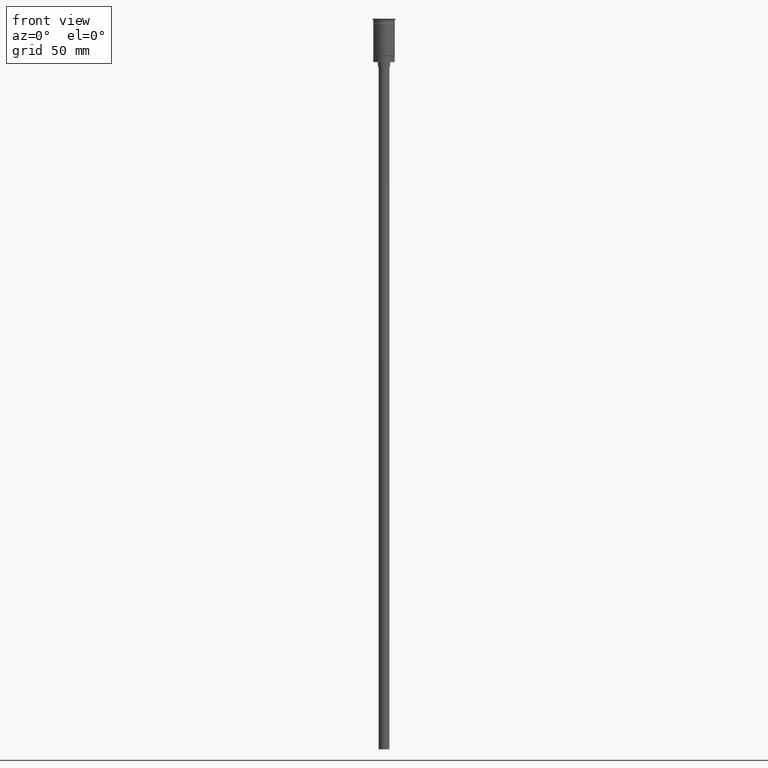
[diagram: clean part render]
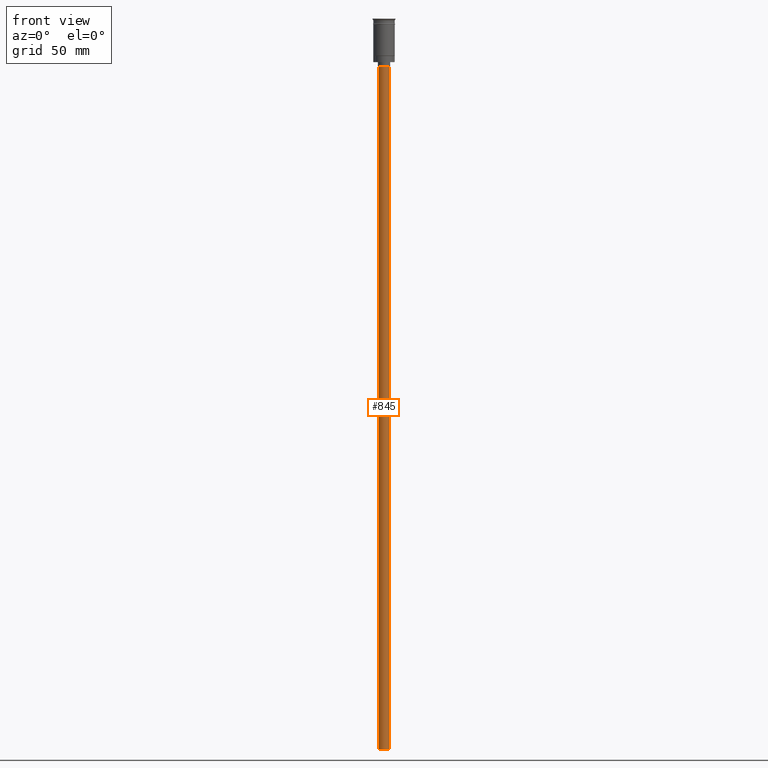
[diagram: same view with one face highlighted and labeled with its STEP entity id]
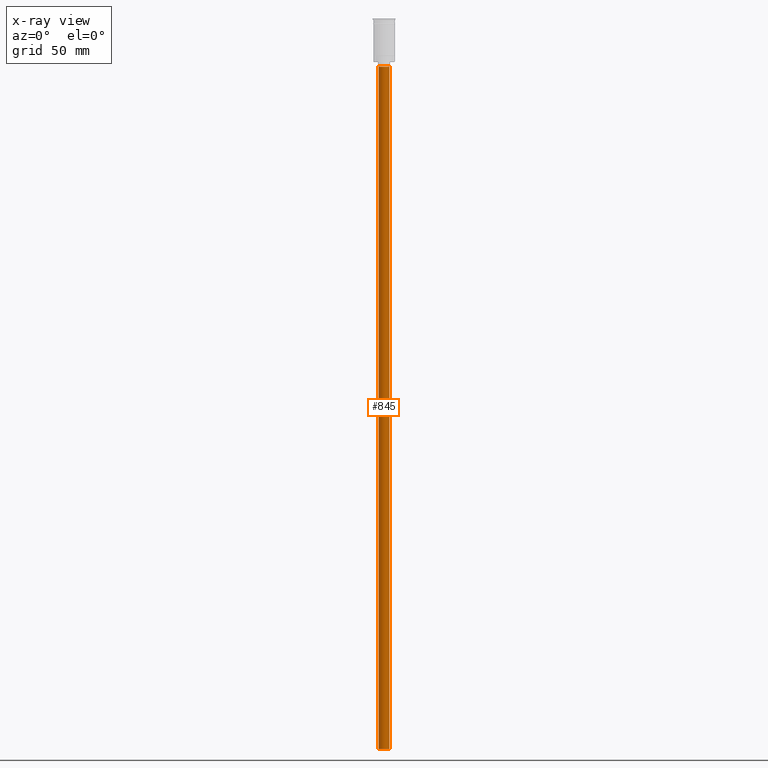
[diagram: x-ray of the same camera — body ghosted, the highlighted face saturated]
A machine part, front view. The second image highlights one B-rep face of the part: STEP entity #845.
The next image is the same camera in x-ray: the body ghosted, the highlighted face saturated — about 0% of this face is hidden behind the body in this view.
In plain terms, the highlighted cylindrical surface (edge-blend (fillet) strip) has radius 3.5 mm, axis along (-0, -0, 1).
Its self-contained STEP definition (entity closure, byte-faithful):
#23 = EDGE_CURVE ( 'NONE', #896, #249, #668, .T. ) ;
#45 = CARTESIAN_POINT ( 'NONE',  ( 0.000000000000000000, 0.000000000000000000, -31.50000000000000000 ) ) ;
#81 = DIRECTION ( 'NONE',  ( -0.000000000000000000, -0.000000000000000000, 1.000000000000000000 ) ) ;
#145 = FACE_OUTER_BOUND ( 'NONE', #763, .T. ) ;
#190 = DIRECTION ( 'NONE',  ( -0.000000000000000000, -0.000000000000000000, 1.000000000000000000 ) ) ;
#217 = LINE ( 'NONE', #1214, #1348 ) ;
#249 = VERTEX_POINT ( 'NONE', #1576 ) ;
#255 = DIRECTION ( 'NONE',  ( -1.000000000000000000, 0.000000000000000000, 0.000000000000000000 ) ) ;
#303 = CARTESIAN_POINT ( 'NONE',  ( 0.000000000000000000, 0.000000000000000000, -478.5000000000000568 ) ) ;
#327 = CYLINDRICAL_SURFACE ( 'NONE', #625, 3.500000000000000444 ) ;
#387 = ORIENTED_EDGE ( 'NONE', *, *, #1354, .T. ) ;
#396 = CARTESIAN_POINT ( 'NONE',  ( 3.500000000000000444, 0.000000000000000000, -478.5000000000000568 ) ) ;
#429 = DIRECTION ( 'NONE',  ( 1.000000000000000000, 0.000000000000000000, 0.000000000000000000 ) ) ;
#437 = DIRECTION ( 'NONE',  ( 0.000000000000000000, 0.000000000000000000, -1.000000000000000000 ) ) ;
#476 = VERTEX_POINT ( 'NONE', #1563 ) ;
#507 = DIRECTION ( 'NONE',  ( 0.000000000000000000, 0.000000000000000000, -1.000000000000000000 ) ) ;
#553 = EDGE_CURVE ( 'NONE', #249, #1580, #217, .T. ) ;
#625 = AXIS2_PLACEMENT_3D ( 'NONE', #303, #190, #429 ) ;
#664 = CIRCLE ( 'NONE', #697, 3.500000000000000444 ) ;
#668 = CIRCLE ( 'NONE', #1374, 3.500000000000000444 ) ;
#697 = AXIS2_PLACEMENT_3D ( 'NONE', #45, #507, #255 ) ;
#763 = EDGE_LOOP ( 'NONE', ( #1334, #1168, #774, #387 ) ) ;
#774 = ORIENTED_EDGE ( 'NONE', *, *, #1461, .T. ) ;
#811 = CARTESIAN_POINT ( 'NONE',  ( 0.000000000000000000, 0.000000000000000000, -478.5000000000000568 ) ) ;
#845 = ADVANCED_FACE ( 'NONE', ( #145 ), #327, .T. ) ;
#896 = VERTEX_POINT ( 'NONE', #1061 ) ;
#1029 = LINE ( 'NONE', #396, #1138 ) ;
#1061 = CARTESIAN_POINT ( 'NONE',  ( 3.500000000000000444, 0.000000000000000000, -478.5000000000000568 ) ) ;
#1138 = VECTOR ( 'NONE', #1518, 1000.000000000000000 ) ;
#1168 = ORIENTED_EDGE ( 'NONE', *, *, #23, .F. ) ;
#1214 = CARTESIAN_POINT ( 'NONE',  ( -3.500000000000000444, 4.286263797015737088E-16, -478.5000000000000568 ) ) ;
#1278 = DIRECTION ( 'NONE',  ( -1.000000000000000000, 0.000000000000000000, 0.000000000000000000 ) ) ;
#1334 = ORIENTED_EDGE ( 'NONE', *, *, #553, .F. ) ;
#1348 = VECTOR ( 'NONE', #81, 1000.000000000000000 ) ;
#1354 = EDGE_CURVE ( 'NONE', #476, #1580, #664, .T. ) ;
#1374 = AXIS2_PLACEMENT_3D ( 'NONE', #811, #437, #1278 ) ;
#1461 = EDGE_CURVE ( 'NONE', #896, #476, #1029, .T. ) ;
#1518 = DIRECTION ( 'NONE',  ( -0.000000000000000000, -0.000000000000000000, 1.000000000000000000 ) ) ;
#1563 = CARTESIAN_POINT ( 'NONE',  ( 3.500000000000000444, 0.000000000000000000, -31.50000000000000000 ) ) ;
#1567 = CARTESIAN_POINT ( 'NONE',  ( -3.500000000000000444, 4.286263797015737088E-16, -31.50000000000000000 ) ) ;
#1576 = CARTESIAN_POINT ( 'NONE',  ( -3.500000000000000444, 4.286263797015737088E-16, -478.5000000000000568 ) ) ;
#1580 = VERTEX_POINT ( 'NONE', #1567 ) ;